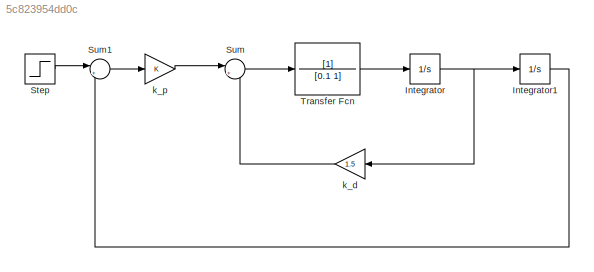
MODEL slx_5c823954dd0c
KIND model
CONFIG AbsTol = auto
CONFIG EnableMultiTasking = off
CONFIG FixedStep = auto
CONFIG MaxStep = auto
CONFIG MinStep = auto
CONFIG RelTol = 1e-3
CONFIG SampleTimeConstraint = Unconstrained
CONFIG SolverName = VariableStepAuto
CONFIG StartTime = 0.0
CONFIG StopTime = 10.0
BLOCK [Integrator] Integrator
BLOCK [Integrator] Integrator1
BLOCK [Step] Step
  SampleTime = 0
BLOCK [Sum] Sum
  Inputs = |+-
BLOCK [Sum] Sum1
  Inputs = |+-
BLOCK [TransferFcn] Transfer Fcn
  Denominator = [0.1 1]
BLOCK [Gain] k_d
  Gain = 1.5
  NameLocation = top
BLOCK [Gain] k_p
LINE Integrator1:1 -> Sum1:2
NET Integrator:1 -> Integrator1:1, k_d:1
LINE Step:1 -> Sum1:1
LINE Sum1:1 -> k_p:1
LINE Sum:1 -> Transfer Fcn:1
LINE Transfer Fcn:1 -> Integrator:1
LINE k_d:1 -> Sum:2
LINE k_p:1 -> Sum:1
note: NET lines group one-source signal fan-out (src -> all destinations, sorted); 1:1 wires keep LINE
